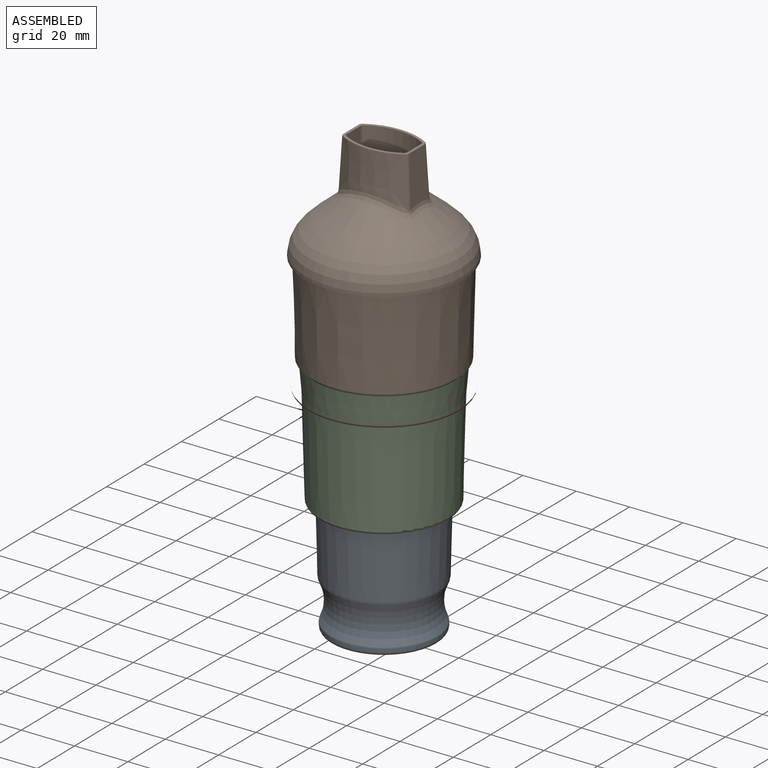
[diagram: assembled view]
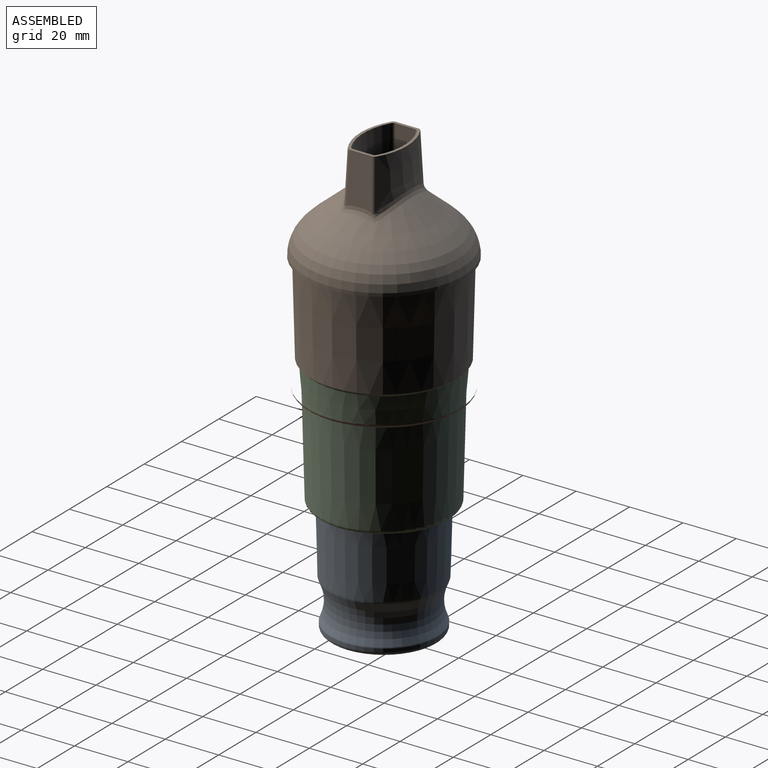
[diagram: assembled view, second angle]
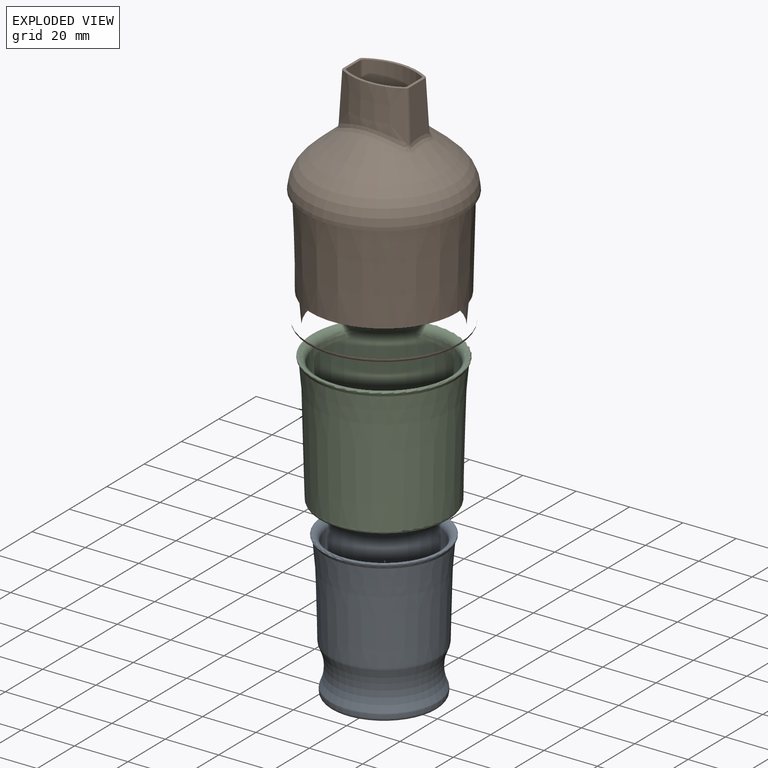
[diagram: exploded view]
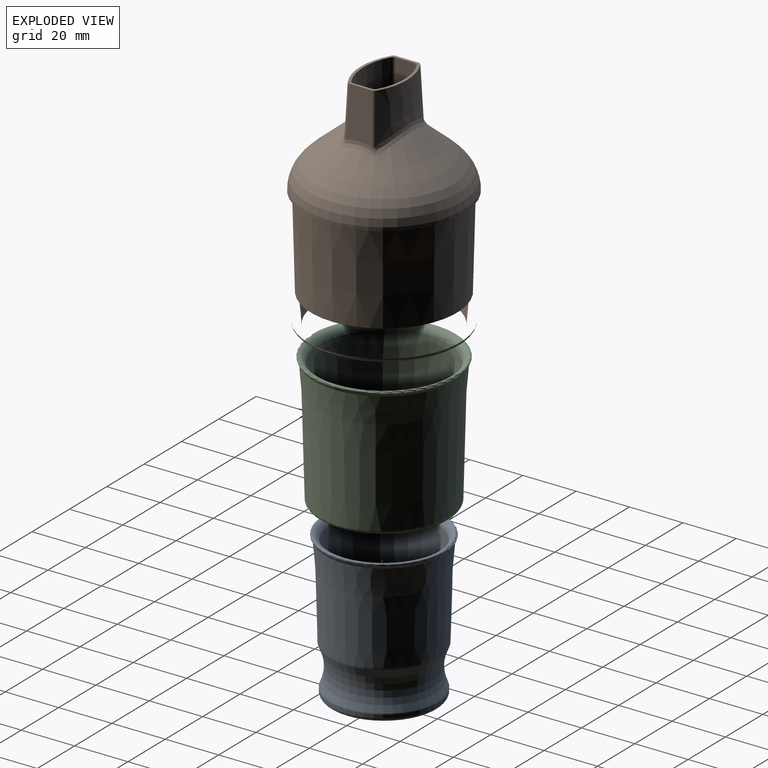
[diagram: exploded view, second angle]
ASSEMBLY  parts=3 mates=2
PART A: 35 faces, bbox 50.4x50.4x56.7 mm
  f0: cone r=19.94mm half-angle=1.5deg, axis (0,0,1), area 4090.6mm2, adj f27,f30
  f1: torus R=33.5mm, axis (0,0,-1), area 1571.7mm2, adj f27,f28
  f2: cone r=18.58mm half-angle=1.5deg, axis (0,0,1), area 24.6mm2, adj f28,f33
  f3: plane 36.1x36.1mm, normal (0,0,1), area 653mm2, adj f10,f11,f12,f13,f33
  f4: plane 37.08x37.08mm, normal (0,0,-1), area 675.9mm2, adj f10,f11,f12,f13,f14,f15,f16,f17
  f5: cone r=20mm half-angle=1.5deg, axis (0,0,1), area 135.3mm2, adj f31,f32
  f6: torus R=35mm, axis (0,0,-1), area 1743.6mm2, adj f29,f32
  f7: cone r=20.47mm half-angle=1.5deg, axis (0,0,1), area 3194.3mm2, adj f8,f29
  f8: cone r=21.13mm half-angle=5deg, axis (0,0,1), area 1360mm2, adj f7,f9
  f9: cone r=22mm half-angle=30deg, axis (0,0,1), area 190mm2, adj f8,f34
  f10: plane 10x1.5mm, normal (1,0,0), area 15mm2, adj f3,f4,f11,f13
  f11: cylinder r=22.89mm len=24.8mm, axis (0,0,-1), area 39.3mm2, adj f3,f4,f10,f12
  f12: plane 10x1.5mm, normal (-1,0,0), area 15mm2, adj f3,f4,f11,f13
  f13: cylinder r=22.89mm len=24.8mm, axis (0,0,-1), area 39.3mm2, adj f3,f4,f10,f12
  f14: plane 4.79x0.4mm, normal (-1,0,0), area 1.9mm2, adj f4,f15,f24,f25
  f15: plane 3.92x0.4mm, normal (0,1,0), area 1.6mm2, adj f4,f14,f16,f25
  f16: plane 1x0.58mm, normal (-0.87,0.5,0), area 0.5mm2, adj f4,f15,f17,f25
  f17: plane 10x0.4mm, normal (0,-1,0), area 4mm2, adj f4,f16,f18,f25
  f18: plane 8.66x5mm, normal (0.87,0.5,0), area 4mm2, adj f4,f17,f19,f25
  f19: plane 4.33x2.5mm, normal (-0.87,0.5,0), area 2mm2, adj f4,f18,f20,f25
  f20: plane 0.87x0.5mm, normal (-0.5,-0.87,0), area 0.4mm2, adj f4,f19,f24,f25
  f21: plane 2.77x0.4mm, normal (0,1,0), area 1.1mm2, adj f22,f23,f25,f26
  f22: plane 4.79x0.4mm, normal (1,0,0), area 1.9mm2, adj f21,f23,f25,f26
  f23: plane 4.79x2.77mm, normal (-0.87,-0.5,0), area 2.2mm2, adj f21,f22,f25,f26
  f24: plane 1.96x1.13mm, normal (0.87,-0.5,0), area 0.9mm2, adj f4,f14,f20,f25
  f25: plane 10x8.66mm, normal (0,0,-1), area 26.5mm2, adj f14,f15,f16,f17,f18,f19,f20,f21
  f26: plane 4.79x2.77mm, normal (0,0,-1), area 6.6mm2, adj f21,f22,f23
  f27: torus R=15.99mm, axis (0,0,-1), area 154mm2, adj f0,f1
  f28: torus R=15.56mm, axis (0,0,-1), area 150.7mm2, adj f1,f2
  f29: torus R=17.49mm, axis (0,0,1), area 166.2mm2, adj f6,f7
  f30: torus R=22.86mm, axis (0,0,1), area 504.8mm2, adj f0,f34
  f31: torus R=18.54mm, axis (0,0,-1), area 283.6mm2, adj f4,f5
  f32: torus R=18.57mm, axis (0,0,1), area 85mm2, adj f5,f6
  f33: torus R=18.05mm, axis (0,0,1), area 89.1mm2, adj f2,f3
  f34: torus R=22.24mm, axis (0,0,1), area 166.1mm2, adj f9,f30
PART B: 54 faces, bbox 64.5x64.5x95.1 mm
  f0: cone r=23.13mm half-angle=50deg, axis (0,0,-1), area 1475.3mm2, adj f2,f24,f25,f26,f27
  f1: cone r=18.9mm half-angle=50deg, axis (0,0,-1), area 928.5mm2, adj f20,f21,f22,f23,f52
  f2: sphere r=35.98mm, area 677.5mm2, adj f0,f19
  f3: sphere r=34.74mm, area 959.4mm2, adj f18,f52
  f4: cone r=27.39mm half-angle=1.5deg, axis (0,0,1), area 5942.3mm2, adj f5,f18
  f5: cone r=26.23mm half-angle=45deg, axis (0,0,1), area 275.1mm2, adj f4,f6
  f6: cone r=25.36mm half-angle=5deg, axis (0,0,1), area 1627mm2, adj f5,f7
  f7: plane 54.27x54.27mm, normal (0,0,-1), area 293mm2, adj f6,f53
  f8: cone r=29.91mm half-angle=1.5deg, axis (0,0,1), area 8057.3mm2, adj f19,f53
  f9: plane 18.59x9.48mm, normal (-1,0,0.05), area 161.5mm2, adj f17,f27,f40,f41,f49,f50
  f10: cone r=22.89mm half-angle=3deg, axis (0,0,-1), area 465.9mm2, adj f17,f25,f40,f43
  f11: plane 18.58x9.46mm, normal (1,0,0.05), area 161.5mm2, adj f17,f24,f43,f44,f46,f47
  f12: cylinder r=21.89mm len=21.26mm, axis (0,0,-1), area 400mm2, adj f17,f21,f28,f37
  f13: plane 18.54x7.23mm, normal (-1,0,0), area 131.1mm2, adj f17,f23,f28,f29,f31,f32
  f14: cylinder r=21.89mm len=21.26mm, axis (0,0,-1), area 400mm2, adj f17,f22,f31,f34
  f15: plane 18.55x7.25mm, normal (1,0,0), area 131.1mm2, adj f17,f20,f34,f35,f37,f38
  f16: cone r=22.89mm half-angle=3deg, axis (0,0,-1), area 465.9mm2, adj f17,f26,f46,f49
  f17: plane 24.82x17.32mm, normal (0,0,1), area 69.1mm2, adj f9,f10,f11,f12,f13,f14,f15,f16
  f18: torus R=15.28mm, axis (0,0,-1), area 1803.4mm2, adj f3,f4
  f19: torus R=16.79mm, axis (0,0,-1), area 1819.2mm2, adj f2,f8
  f20: bspline ~15.61x4.28mm, area 24.3mm2, adj f1,f15,f36,f39
  f21: bspline ~28.36x7.59mm, area 69.7mm2, adj f1,f12,f29,f30,f38,f39
  f22: bspline ~28.36x7.59mm, area 69.7mm2, adj f1,f14,f32,f33,f35,f36
  f23: bspline ~15.62x4.28mm, area 24.3mm2, adj f1,f13,f30,f33
  f24: bspline ~17.94x4.44mm, area 28.4mm2, adj f0,f11,f45,f48
  f25: bspline ~32.04x7.74mm, area 77.1mm2, adj f0,f10,f41,f42,f44,f45
  f26: bspline ~32.04x7.74mm, area 77.1mm2, adj f0,f16,f47,f48,f50,f51
  f27: bspline ~16.08x3.84mm, area 28.4mm2, adj f0,f9,f42,f51
  f28: cylinder r=1.5mm len=18.02mm, axis (0,0,-1), area 28.8mm2, adj f12,f13,f17,f29
  f29: bspline ~1.65x1.38mm, area 0.7mm2, adj f13,f21,f28,f30
  f30: bspline ~3.72x1.97mm, area 1.9mm2, adj f21,f23,f29
  f31: cylinder r=1.5mm len=18.02mm, axis (0,0,-1), area 28.8mm2, adj f13,f14,f17,f32
  f32: bspline ~2.43x1.46mm, area 0.7mm2, adj f13,f22,f31,f33
  f33: bspline ~3.09x1.94mm, area 1.9mm2, adj f22,f23,f32
  f34: cylinder r=1.5mm len=18.02mm, axis (0,0,-1), area 28.8mm2, adj f14,f15,f17,f35
  f35: bspline ~1.79x1.46mm, area 0.7mm2, adj f15,f22,f34,f36
  f36: bspline ~3.72x1.97mm, area 1.9mm2, adj f20,f22,f35
  f37: cylinder r=1.5mm len=18.02mm, axis (0,0,-1), area 28.8mm2, adj f12,f15,f17,f38
  f38: bspline ~1.65x1.38mm, area 0.7mm2, adj f15,f21,f37,f39
  f39: bspline ~3.09x1.94mm, area 1.9mm2, adj f20,f21,f38
  f40: bspline ~56.54x3.72mm, area 27.9mm2, adj f9,f10,f17,f41
  f41: bspline ~1.36x1.35mm, area 0.5mm2, adj f9,f25,f40,f42
  f42: bspline ~3.59x1.99mm, area 1.7mm2, adj f25,f27,f41
  f43: bspline ~56.54x3.72mm, area 27.9mm2, adj f10,f11,f17,f44
  f44: bspline ~1.91x1.36mm, area 0.5mm2, adj f11,f25,f43,f45
  f45: bspline ~3.59x1.99mm, area 1.7mm2, adj f24,f25,f44
  f46: bspline ~56.54x3.72mm, area 27.9mm2, adj f11,f16,f17,f47
  f47: bspline ~1.33x1.32mm, area 0.5mm2, adj f11,f26,f46,f48
  f48: bspline ~2.94x1.93mm, area 1.7mm2, adj f24,f26,f47
  f49: bspline ~56.54x3.72mm, area 27.9mm2, adj f9,f16,f17,f50
  f50: bspline ~1.36x1.35mm, area 0.5mm2, adj f9,f26,f49,f51
  f51: bspline ~3.59x1.99mm, area 1.7mm2, adj f26,f27,f50
  f52: torus R=19.79mm, axis (0,0,-1), area 21.5mm2, adj f1,f3
  f53: torus R=27.14mm, axis (0,0,1), area 408.8mm2, adj f7,f8
PART C: 10 faces, bbox 58.7x58.7x50 mm
  f0: cone r=22mm half-angle=45deg, axis (0,0,1), area 231.7mm2, adj f1,f6
  f1: cone r=21.13mm half-angle=5deg, axis (0,0,1), area 1360mm2, adj f0,f2
  f2: plane 45.81x45.81mm, normal (0,0,-1), area 245.8mm2, adj f1,f8
  f3: cone r=25.36mm half-angle=1.5deg, axis (0,0,1), area 5714.1mm2, adj f4,f8
  f4: cone r=26.23mm half-angle=5deg, axis (0,0,1), area 1627mm2, adj f3,f5
  f5: cone r=27.39mm half-angle=30deg, axis (0,0,1), area 226.1mm2, adj f4,f9
  f6: cone r=23.16mm half-angle=1.5deg, axis (0,0,1), area 5334.6mm2, adj f0,f7
  f7: torus R=27.1mm, axis (0,0,-1), area 608.1mm2, adj f6,f9
  f8: torus R=22.9mm, axis (0,0,1), area 347.2mm2, adj f2,f3
  f9: torus R=26.48mm, axis (0,0,1), area 197.3mm2, adj f5,f7
PLACE A t=(0,0,-83)mm
PLACE B t=(0,0,-2)mm
PLACE C t=(0,0,-40)mm
MATE fastened C.f0 <-> B.f0  axis (0,0,-1) through (0,0,-2)mm
MATE fastened A.f0 <-> C.f0  axis (0,0,-1) through (0,0,-40)mm
